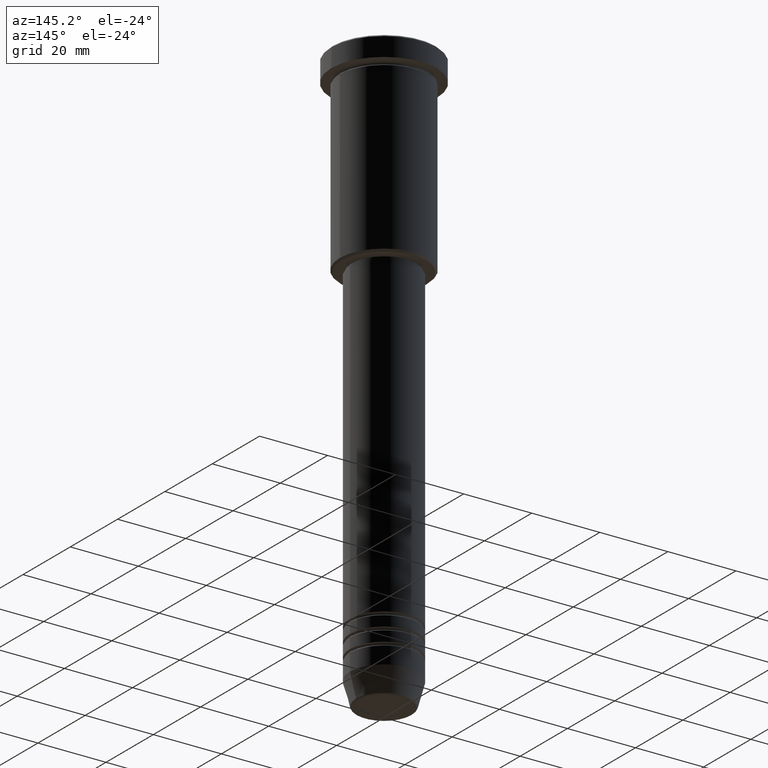
[diagram: clean part render]
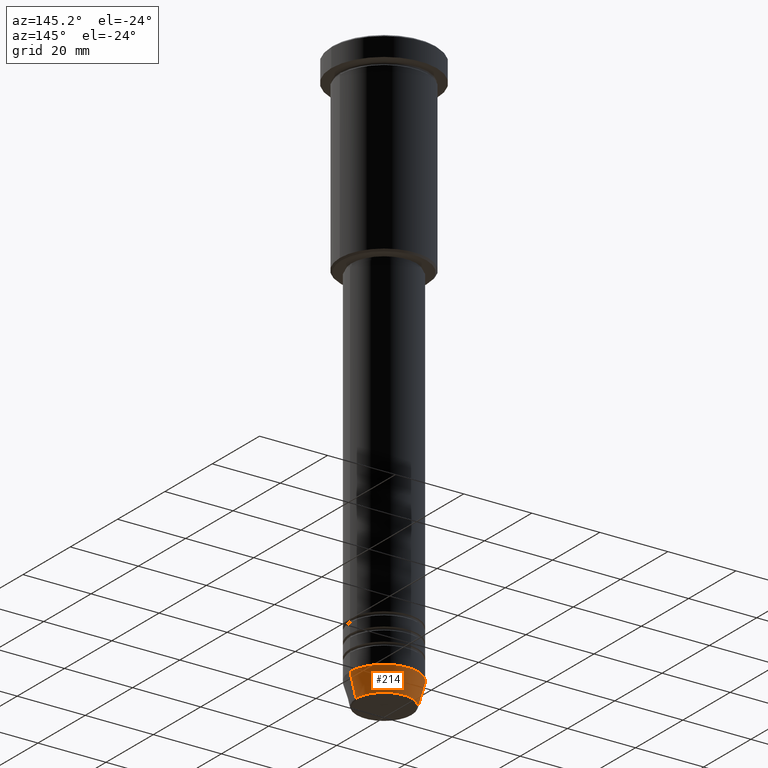
[diagram: same view with one face highlighted and labeled with its STEP entity id]
A machine part, auxiliary view. The second image highlights one B-rep face of the part: STEP entity #214.
In plain terms, the highlighted conical surface has half-angle 15 deg.
Its self-contained STEP definition (entity closure, byte-faithful):
#16 = ORIENTED_EDGE ( 'NONE', *, *, #846, .T. ) ;
#160 = VECTOR ( 'NONE', #471, 1000.000000000000114 ) ;
#161 = DIRECTION ( 'NONE',  ( 1.000000000000000000, 0.000000000000000000, 0.000000000000000000 ) ) ;
#187 = DIRECTION ( 'NONE',  ( -0.000000000000000000, -0.000000000000000000, 1.000000000000000000 ) ) ;
#189 = CARTESIAN_POINT ( 'NONE',  ( 0.000000000000000000, 0.000000000000000000, -164.0000000000000000 ) ) ;
#199 = CARTESIAN_POINT ( 'NONE',  ( -10.00000000000000000, 1.224646799147353256E-15, -164.0000000000000000 ) ) ;
#214 = ADVANCED_FACE ( 'NONE', ( #736 ), #524, .T. ) ;
#215 = CARTESIAN_POINT ( 'NONE',  ( 10.00000000000000000, 0.000000000000000000, -164.0000000000000000 ) ) ;
#227 = EDGE_CURVE ( 'NONE', #662, #323, #934, .T. ) ;
#240 = ORIENTED_EDGE ( 'NONE', *, *, #227, .T. ) ;
#257 = EDGE_CURVE ( 'NONE', #662, #343, #1026, .T. ) ;
#323 = VERTEX_POINT ( 'NONE', #648 ) ;
#343 = VERTEX_POINT ( 'NONE', #215 ) ;
#405 = ORIENTED_EDGE ( 'NONE', *, *, #257, .F. ) ;
#436 = EDGE_CURVE ( 'NONE', #343, #870, #973, .T. ) ;
#469 = DIRECTION ( 'NONE',  ( 1.000000000000000000, 0.000000000000000000, 0.000000000000000000 ) ) ;
#471 = DIRECTION ( 'NONE',  ( -0.2588190451025210725, 3.169619151431769255E-17, 0.9659258262890680902 ) ) ;
#487 = CARTESIAN_POINT ( 'NONE',  ( -10.00000000000000000, 1.224646799147353256E-15, -164.0000000000000000 ) ) ;
#524 = CONICAL_SURFACE ( 'NONE', #837, 10.00000000000000000, 0.2617993877991497964 ) ;
#546 = AXIS2_PLACEMENT_3D ( 'NONE', #567, #187, #732 ) ;
#559 = DIRECTION ( 'NONE',  ( -0.000000000000000000, -0.000000000000000000, 1.000000000000000000 ) ) ;
#567 = CARTESIAN_POINT ( 'NONE',  ( 0.000000000000000000, 0.000000000000000000, -164.0000000000000000 ) ) ;
#572 = LINE ( 'NONE', #199, #160 ) ;
#602 = VECTOR ( 'NONE', #822, 1000.000000000000114 ) ;
#648 = CARTESIAN_POINT ( 'NONE',  ( -8.223655072137185940, 1.115877042642911659E-15, -170.6294095225512990 ) ) ;
#658 = CARTESIAN_POINT ( 'NONE',  ( 0.000000000000000000, 0.000000000000000000, -170.6294095225512990 ) ) ;
#662 = VERTEX_POINT ( 'NONE', #869 ) ;
#687 = DIRECTION ( 'NONE',  ( -0.000000000000000000, -0.000000000000000000, 1.000000000000000000 ) ) ;
#717 = AXIS2_PLACEMENT_3D ( 'NONE', #658, #687, #161 ) ;
#732 = DIRECTION ( 'NONE',  ( 1.000000000000000000, 0.000000000000000000, 0.000000000000000000 ) ) ;
#736 = FACE_OUTER_BOUND ( 'NONE', #886, .T. ) ;
#822 = DIRECTION ( 'NONE',  ( 0.2588190451025210725, 0.000000000000000000, 0.9659258262890680902 ) ) ;
#837 = AXIS2_PLACEMENT_3D ( 'NONE', #189, #559, #469 ) ;
#846 = EDGE_CURVE ( 'NONE', #323, #870, #572, .T. ) ;
#869 = CARTESIAN_POINT ( 'NONE',  ( 8.223655072137185940, 0.000000000000000000, -170.6294095225512990 ) ) ;
#870 = VERTEX_POINT ( 'NONE', #487 ) ;
#886 = EDGE_LOOP ( 'NONE', ( #240, #16, #1152, #405 ) ) ;
#934 = CIRCLE ( 'NONE', #717, 8.223655072137185940 ) ;
#973 = CIRCLE ( 'NONE', #546, 10.00000000000000000 ) ;
#1026 = LINE ( 'NONE', #1124, #602 ) ;
#1124 = CARTESIAN_POINT ( 'NONE',  ( 10.00000000000000000, 0.000000000000000000, -164.0000000000000000 ) ) ;
#1152 = ORIENTED_EDGE ( 'NONE', *, *, #436, .F. ) ;